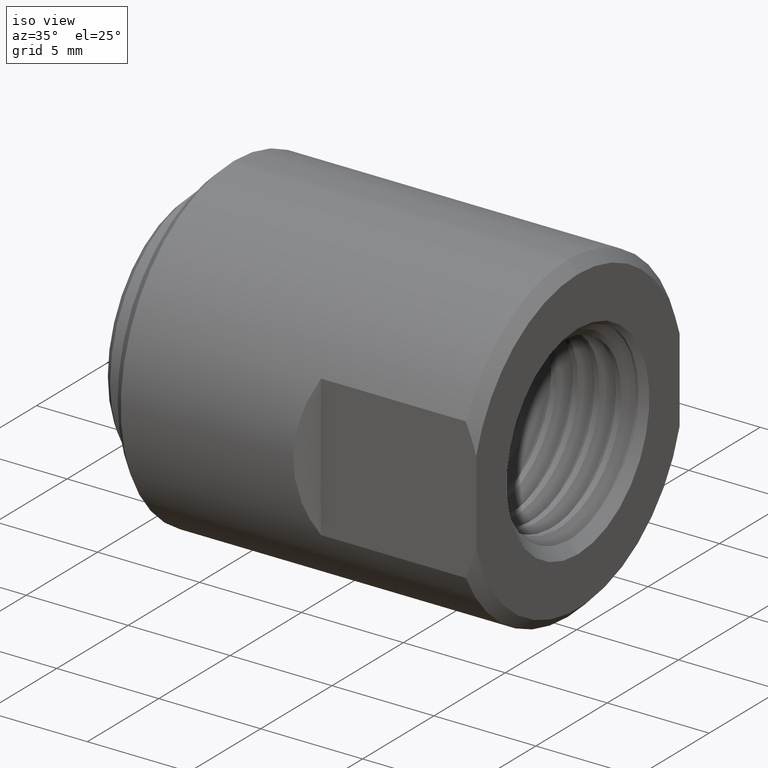
[diagram: clean part render]
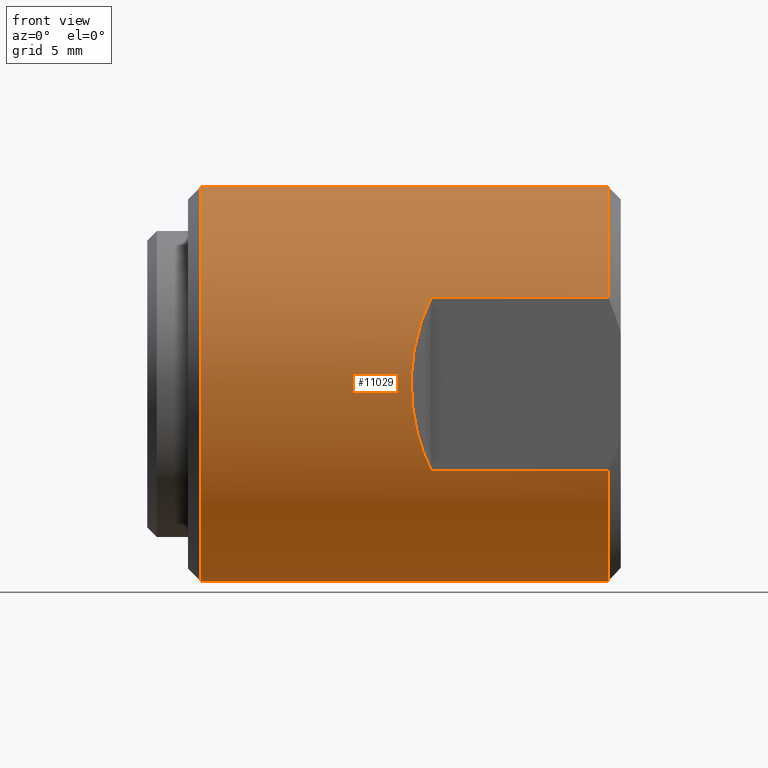
[diagram: tour spotlight — one face highlighted and labeled with its STEP entity id]
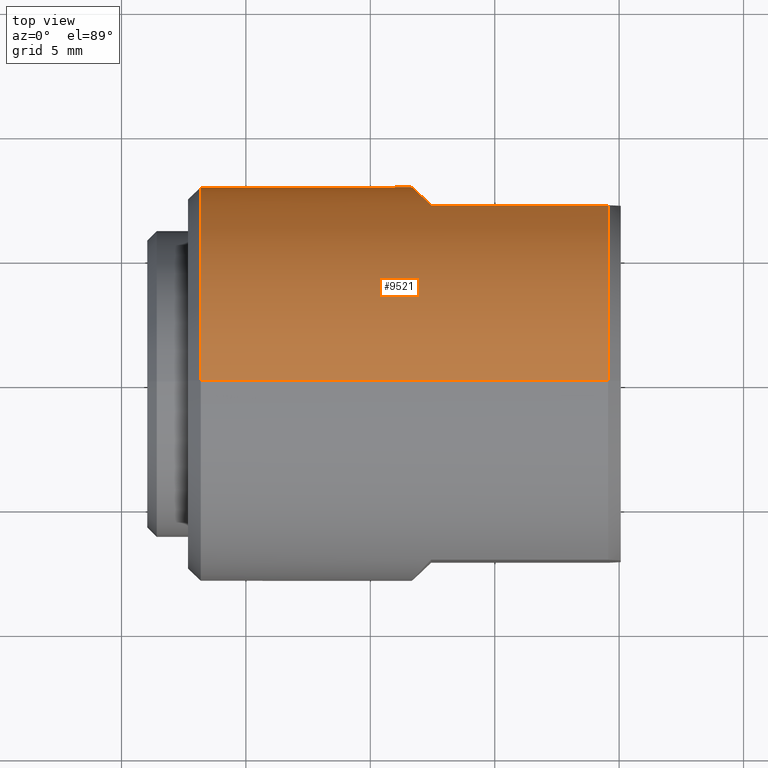
[diagram: tour spotlight — one face highlighted and labeled with its STEP entity id]
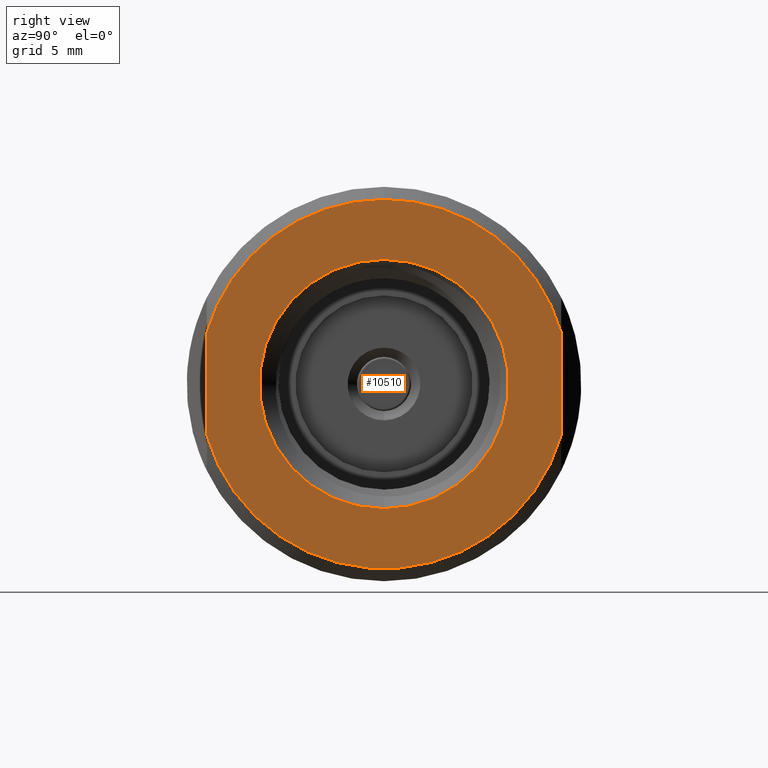
[diagram: tour spotlight — one face highlighted and labeled with its STEP entity id]
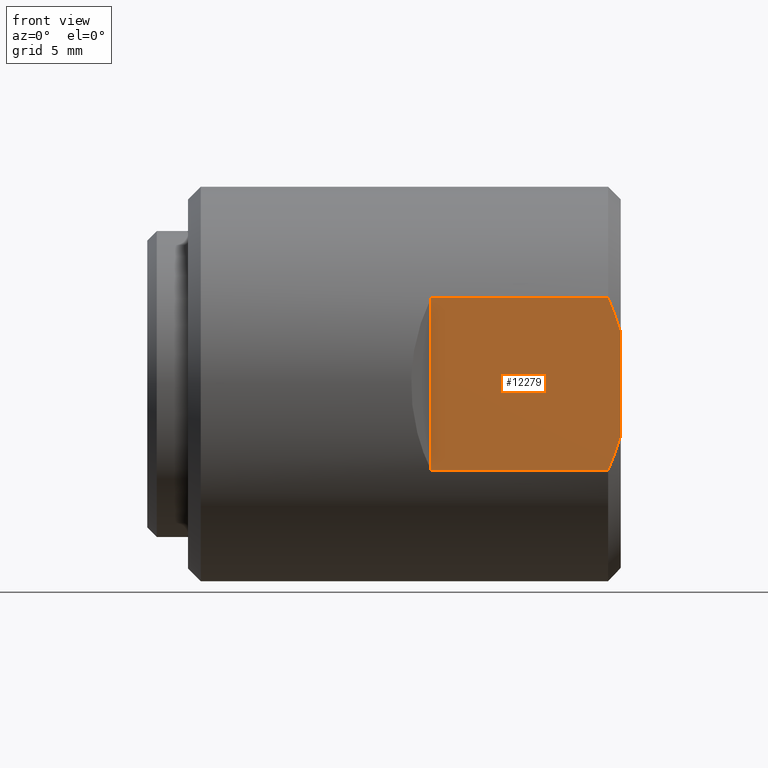
[diagram: tour spotlight — one face highlighted and labeled with its STEP entity id]
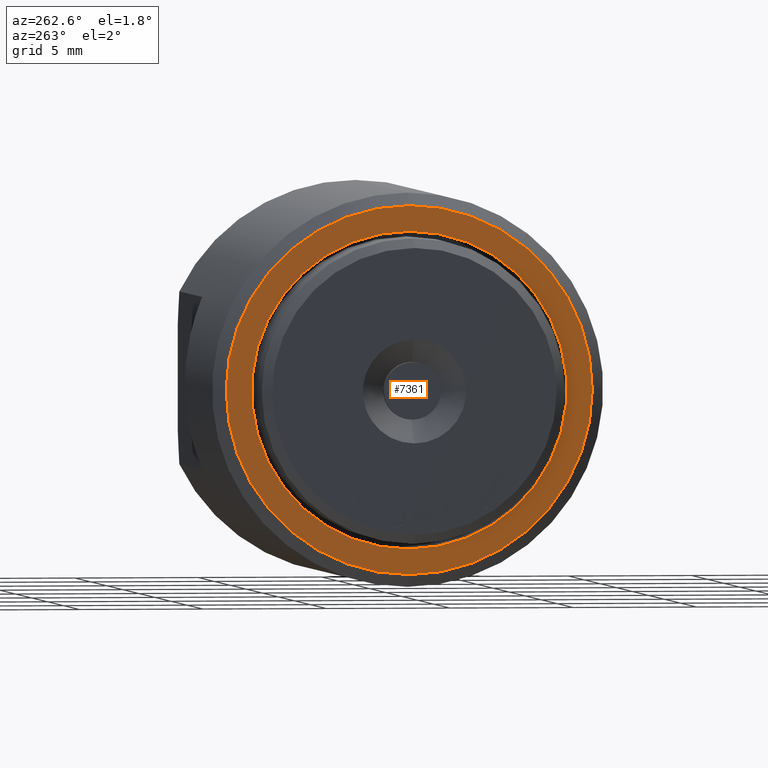
[diagram: tour spotlight — one face highlighted and labeled with its STEP entity id]
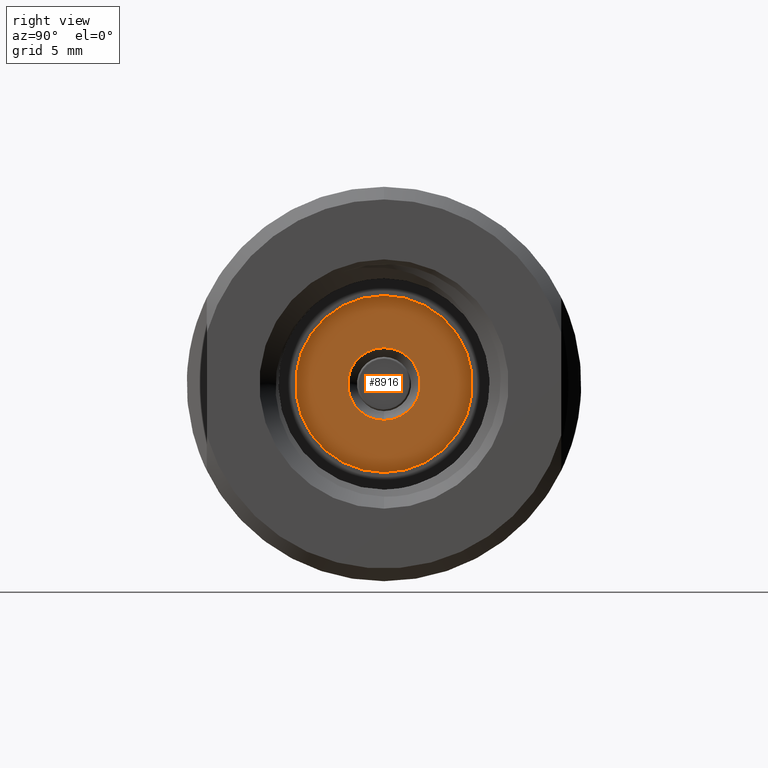
[diagram: tour spotlight — one face highlighted and labeled with its STEP entity id]
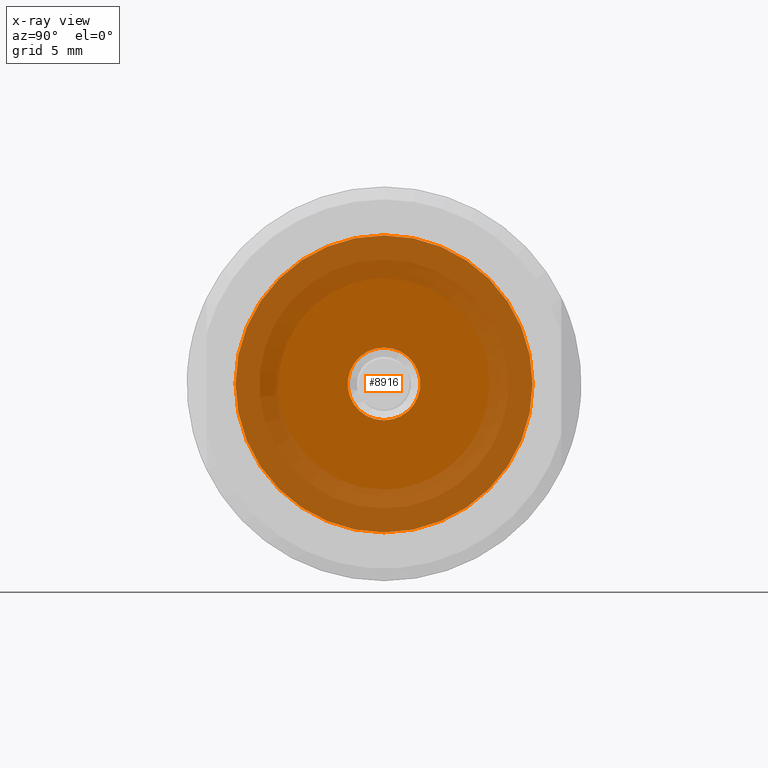
[diagram: x-ray of the same camera — body ghosted, this tour face saturated]
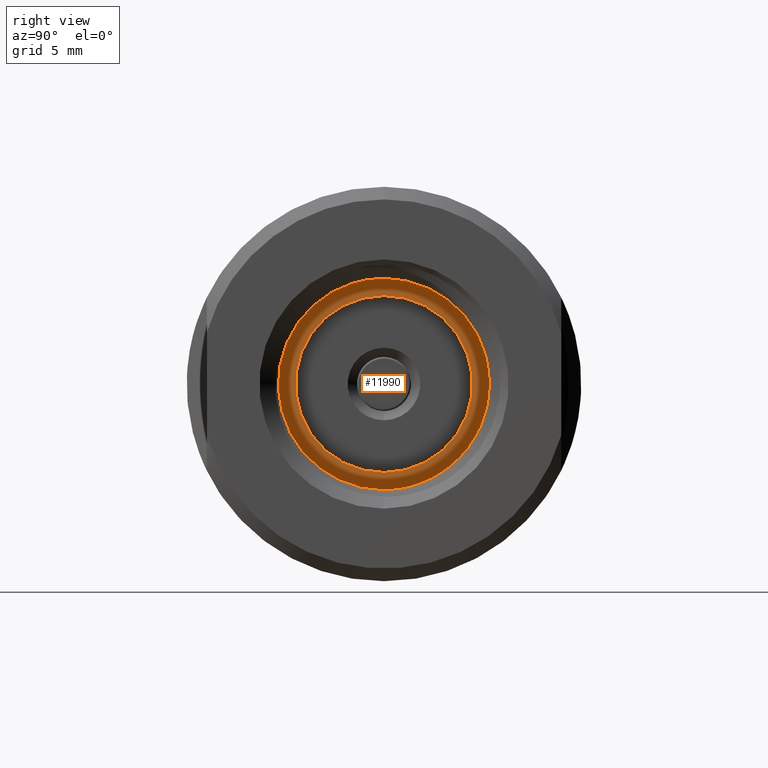
[diagram: tour spotlight — one face highlighted and labeled with its STEP entity id]
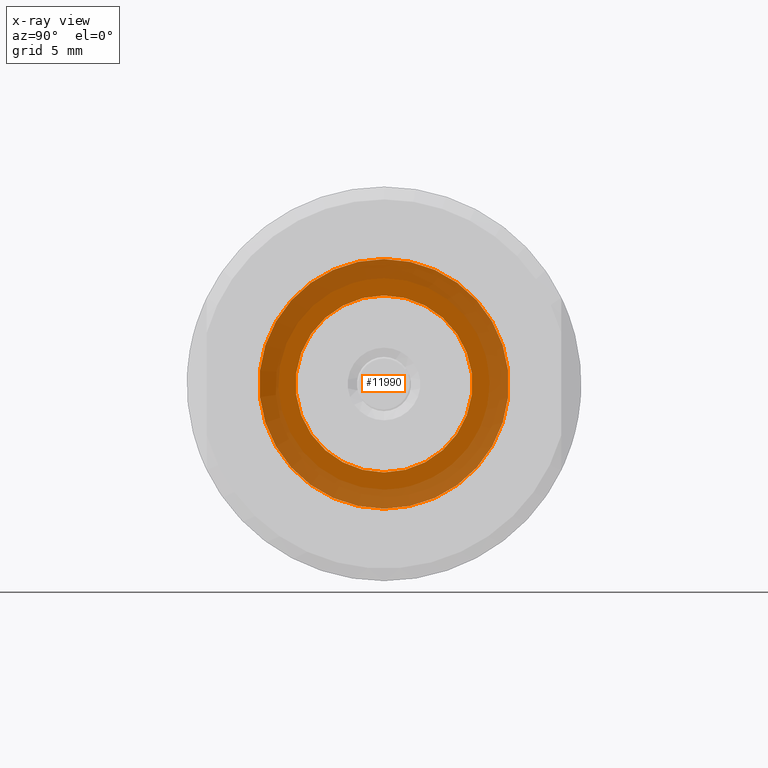
[diagram: x-ray of the same camera — body ghosted, this tour face saturated]
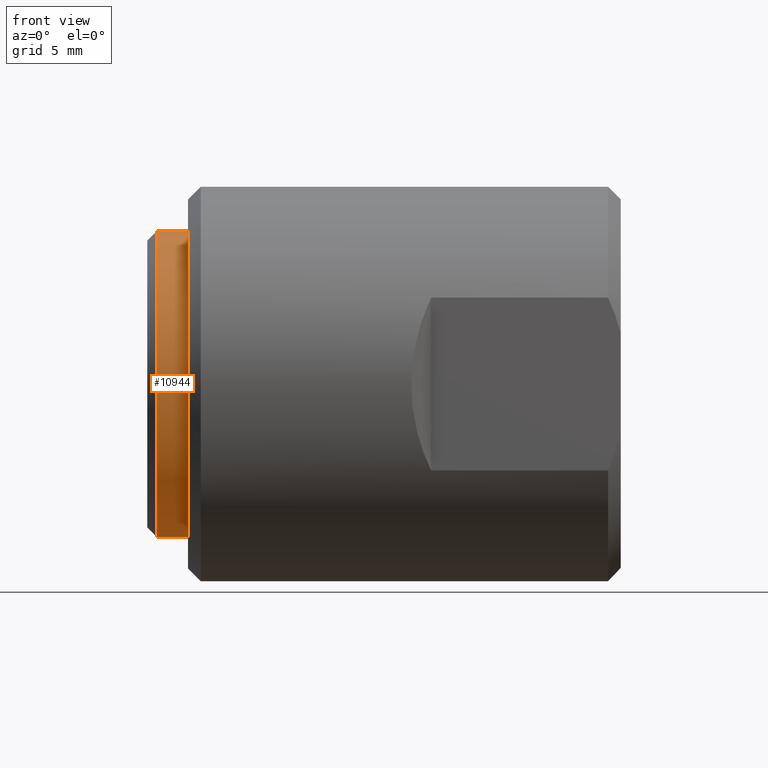
[diagram: tour spotlight — one face highlighted and labeled with its STEP entity id]
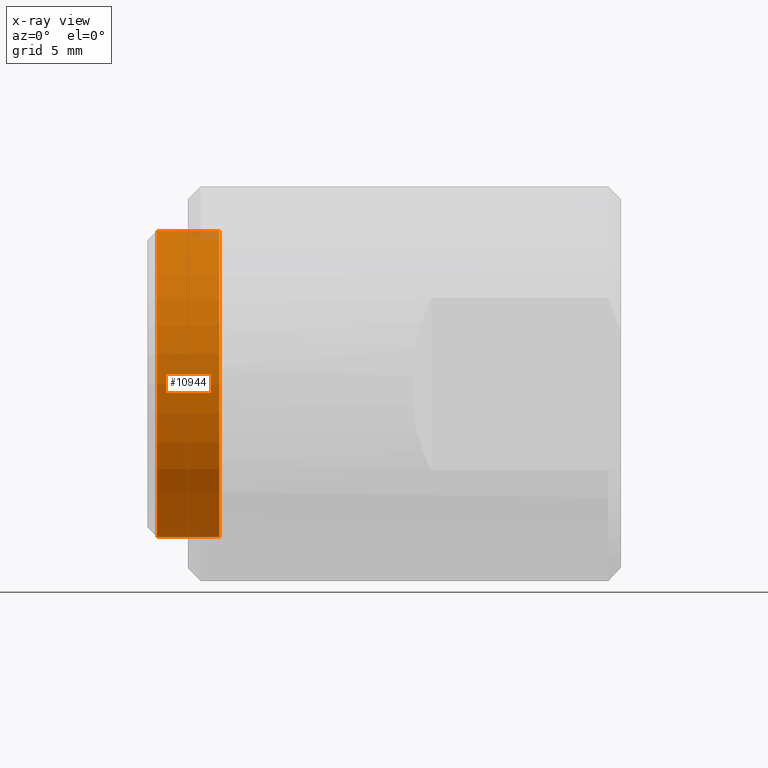
[diagram: x-ray of the same camera — body ghosted, this tour face saturated]
A machine part: a face-by-face anatomy tour. The part has 252 B-rep faces; the first image is the clean iso view, then the 8 largest visible faces are spotlighted one at a time (largest first), each with its STEP entity span.

Face 1 — front view, entity #11029. In plain terms, the highlighted cylindrical surface (partial cylindrical patch) has radius 7.9248 mm, axis along (-1, -0, -0).
Definition (entity closure, byte-faithful):
#109 = ORIENTED_EDGE ( 'NONE', *, *, #2656, .T. ) ;
#242 = LINE ( 'NONE', #10099, #2553 ) ;
#273 = ORIENTED_EDGE ( 'NONE', *, *, #1222, .F. ) ;
#332 = DIRECTION ( 'NONE',  ( -1.000000000000000000, -0.0000000000000000000, -0.0000000000000000000 ) ) ;
#372 = DIRECTION ( 'NONE',  ( -1.000000000000000000, -0.0000000000000000000, -0.0000000000000000000 ) ) ;
#721 = DIRECTION ( 'NONE',  ( 0.0000000000000000000, 0.0000000000000000000, 1.000000000000000000 ) ) ;
#748 = CARTESIAN_POINT ( 'NONE',  ( 0.5729999999999999538, -0.2804999999999999716, -0.1366153358887646496 ) ) ;
#848 = VERTEX_POINT ( 'NONE', #9103 ) ;
#980 = VERTEX_POINT ( 'NONE', #3332 ) ;
#1065 = DIRECTION ( 'NONE',  ( -1.000000000000000000, -0.0000000000000000000, -0.0000000000000000000 ) ) ;
#1222 = EDGE_CURVE ( 'NONE', #3728, #980, #2930, .T. ) ;
#1234 = EDGE_CURVE ( 'NONE', #5708, #2041, #7807, .T. ) ;
#1347 = ORIENTED_EDGE ( 'NONE', *, *, #9077, .F. ) ;
#1404 = DIRECTION ( 'NONE',  ( 0.0000000000000000000, 0.0000000000000000000, 1.000000000000000000 ) ) ;
#1425 = DIRECTION ( 'NONE',  ( -1.000000000000000000, -0.0000000000000000000, -0.0000000000000000000 ) ) ;
#1496 = CARTESIAN_POINT ( 'NONE',  ( 0.2502422680412371703, -0.3232577319587630060, -0.04882472485371666671 ) ) ;
#1670 = AXIS2_PLACEMENT_3D ( 'NONE', #2137, #11679, #9944 ) ;
#1813 = EDGE_CURVE ( 'NONE', #980, #8459, #242, .T. ) ;
#2041 = VERTEX_POINT ( 'NONE', #9620 ) ;
#2134 = AXIS2_PLACEMENT_3D ( 'NONE', #12419, #2694, #721 ) ;
#2137 = CARTESIAN_POINT ( 'NONE',  ( 0.5729999999999999538, 0.0000000000000000000, 0.0000000000000000000 ) ) ;
#2189 = CARTESIAN_POINT ( 'NONE',  ( 0.0000000000000000000, 0.0000000000000000000, 0.0000000000000000000 ) ) ;
#2553 = VECTOR ( 'NONE', #7872, 39.37007874015748143 ) ;
#2574 = CARTESIAN_POINT ( 'NONE',  ( 0.0000000000000000000, 0.0000000000000000000, 0.3119999999999999996 ) ) ;
#2656 = EDGE_CURVE ( 'NONE', #2041, #848, #8284, .T. ) ;
#2694 = DIRECTION ( 'NONE',  ( -1.000000000000000000, -0.0000000000000000000, -0.0000000000000000000 ) ) ;
#2885 = AXIS2_PLACEMENT_3D ( 'NONE', #2189, #1425, #6489 ) ;
#2930 =( BOUNDED_CURVE ( )  B_SPLINE_CURVE ( 3, ( #11089, #11970, #1496, #7005 ),
 .UNSPECIFIED., .F., .F. ) 
 B_SPLINE_CURVE_WITH_KNOTS ( ( 4, 4 ),
 ( 5.829957573947540439, 6.736413040411632025 ),
 .UNSPECIFIED. ) 
 CURVE ( )  GEOMETRIC_REPRESENTATION_ITEM ( )  RATIONAL_B_SPLINE_CURVE ( ( 1.000000000000000000, 0.9326923076923074873, 0.9326923076923074873, 1.000000000000000000 ) ) 
 REPRESENTATION_ITEM ( '' )  );
#3060 = AXIS2_PLACEMENT_3D ( 'NONE', #8000, #372, #1404 ) ;
#3332 = CARTESIAN_POINT ( 'NONE',  ( 0.2929999999999999272, -0.2804999999999999716, -0.1366153358887647884 ) ) ;
#3728 = VERTEX_POINT ( 'NONE', #8533 ) ;
#3862 = EDGE_LOOP ( 'NONE', ( #8322, #7383, #5728, #273, #6234, #9985, #109, #1347 ) ) ;
#3923 = LINE ( 'NONE', #7789, #4790 ) ;
#4269 = FACE_OUTER_BOUND ( 'NONE', #3862, .T. ) ;
#4790 = VECTOR ( 'NONE', #1065, 39.37007874015748143 ) ;
#4821 = CARTESIAN_POINT ( 'NONE',  ( 0.0000000000000000000, 3.820898013339742174E-17, -0.3119999999999999996 ) ) ;
#4968 = EDGE_CURVE ( 'NONE', #5708, #3728, #3923, .T. ) ;
#5708 = VERTEX_POINT ( 'NONE', #8335 ) ;
#5728 = ORIENTED_EDGE ( 'NONE', *, *, #1813, .F. ) ;
#5778 = LINE ( 'NONE', #4821, #9681 ) ;
#6099 = CIRCLE ( 'NONE', #3060, 0.3119999999999999996 ) ;
#6234 = ORIENTED_EDGE ( 'NONE', *, *, #4968, .F. ) ;
#6489 = DIRECTION ( 'NONE',  ( 0.0000000000000000000, 0.0000000000000000000, 1.000000000000000000 ) ) ;
#6670 = EDGE_CURVE ( 'NONE', #10472, #9183, #5778, .T. ) ;
#7005 = CARTESIAN_POINT ( 'NONE',  ( 0.2929999999999999272, -0.2804999999999999716, -0.1366153358887647884 ) ) ;
#7383 = ORIENTED_EDGE ( 'NONE', *, *, #8601, .T. ) ;
#7789 = CARTESIAN_POINT ( 'NONE',  ( -3.192847342595107575E-17, -0.2804999999999999161, 0.1366153358887647884 ) ) ;
#7807 = CIRCLE ( 'NONE', #2134, 0.3119999999999999996 ) ;
#7872 = DIRECTION ( 'NONE',  ( 1.000000000000000000, 0.0000000000000000000, 0.0000000000000000000 ) ) ;
#8000 = CARTESIAN_POINT ( 'NONE',  ( -0.07149999999999999412, 0.0000000000000000000, 0.0000000000000000000 ) ) ;
#8284 = LINE ( 'NONE', #2574, #9651 ) ;
#8322 = ORIENTED_EDGE ( 'NONE', *, *, #6670, .F. ) ;
#8335 = CARTESIAN_POINT ( 'NONE',  ( 0.5729999999999999538, -0.2804999999999999716, 0.1366153358887646496 ) ) ;
#8459 = VERTEX_POINT ( 'NONE', #748 ) ;
#8533 = CARTESIAN_POINT ( 'NONE',  ( 0.2929999999999999272, -0.2804999999999999716, 0.1366153358887647884 ) ) ;
#8601 = EDGE_CURVE ( 'NONE', #10472, #8459, #9361, .T. ) ;
#9077 = EDGE_CURVE ( 'NONE', #9183, #848, #6099, .T. ) ;
#9103 = CARTESIAN_POINT ( 'NONE',  ( -0.07149999999999999412, 0.0000000000000000000, 0.3119999999999999996 ) ) ;
#9183 = VERTEX_POINT ( 'NONE', #9205 ) ;
#9205 = CARTESIAN_POINT ( 'NONE',  ( -0.07149999999999999412, 3.820898013339742174E-17, -0.3119999999999999996 ) ) ;
#9361 = CIRCLE ( 'NONE', #1670, 0.3119999999999999996 ) ;
#9402 = CYLINDRICAL_SURFACE ( 'NONE', #2885, 0.3119999999999999996 ) ;
#9620 = CARTESIAN_POINT ( 'NONE',  ( 0.5729999999999999538, 0.0000000000000000000, 0.3119999999999999996 ) ) ;
#9632 = CARTESIAN_POINT ( 'NONE',  ( 0.5729999999999999538, 3.820898013339742174E-17, -0.3119999999999999996 ) ) ;
#9651 = VECTOR ( 'NONE', #332, 39.37007874015748143 ) ;
#9660 = DIRECTION ( 'NONE',  ( -1.000000000000000000, -0.0000000000000000000, -0.0000000000000000000 ) ) ;
#9681 = VECTOR ( 'NONE', #9660, 39.37007874015748143 ) ;
#9944 = DIRECTION ( 'NONE',  ( 0.0000000000000000000, 0.0000000000000000000, 1.000000000000000000 ) ) ;
#9985 = ORIENTED_EDGE ( 'NONE', *, *, #1234, .T. ) ;
#10099 = CARTESIAN_POINT ( 'NONE',  ( -3.192847342595107575E-17, -0.2804999999999999161, -0.1366153358887647884 ) ) ;
#10472 = VERTEX_POINT ( 'NONE', #9632 ) ;
#11029 = ADVANCED_FACE ( 'NONE', ( #4269 ), #9402, .T. ) ;
#11089 = CARTESIAN_POINT ( 'NONE',  ( 0.2929999999999999272, -0.2804999999999999716, 0.1366153358887647884 ) ) ;
#11679 = DIRECTION ( 'NONE',  ( -1.000000000000000000, -0.0000000000000000000, -0.0000000000000000000 ) ) ;
#11970 = CARTESIAN_POINT ( 'NONE',  ( 0.2502422680412371703, -0.3232577319587630060, 0.04882472485371675691 ) ) ;
#12419 = CARTESIAN_POINT ( 'NONE',  ( 0.5729999999999999538, 0.0000000000000000000, 0.0000000000000000000 ) ) ;

Face 2 — top view, entity #9521. In plain terms, the highlighted cylindrical surface (partial cylindrical patch) has radius 7.9248 mm, axis along (-1, -0, -0).
Definition (entity closure, byte-faithful):
#313 = AXIS2_PLACEMENT_3D ( 'NONE', #10646, #2819, #7580 ) ;
#332 = DIRECTION ( 'NONE',  ( -1.000000000000000000, -0.0000000000000000000, -0.0000000000000000000 ) ) ;
#562 = FACE_OUTER_BOUND ( 'NONE', #11662, .T. ) ;
#848 = VERTEX_POINT ( 'NONE', #9103 ) ;
#1269 = CARTESIAN_POINT ( 'NONE',  ( 0.2929999999999999272, 0.2804999999999999716, -0.1366153358887647884 ) ) ;
#1399 = ORIENTED_EDGE ( 'NONE', *, *, #1800, .F. ) ;
#1800 = EDGE_CURVE ( 'NONE', #9411, #3013, #4565, .T. ) ;
#1818 = CARTESIAN_POINT ( 'NONE',  ( -0.07149999999999999412, 0.0000000000000000000, 0.0000000000000000000 ) ) ;
#1891 = AXIS2_PLACEMENT_3D ( 'NONE', #10988, #12003, #9259 ) ;
#2041 = VERTEX_POINT ( 'NONE', #9620 ) ;
#2286 = ORIENTED_EDGE ( 'NONE', *, *, #2656, .F. ) ;
#2574 = CARTESIAN_POINT ( 'NONE',  ( 0.0000000000000000000, 0.0000000000000000000, 0.3119999999999999996 ) ) ;
#2656 = EDGE_CURVE ( 'NONE', #2041, #848, #8284, .T. ) ;
#2819 = DIRECTION ( 'NONE',  ( -1.000000000000000000, -0.0000000000000000000, -0.0000000000000000000 ) ) ;
#3013 = VERTEX_POINT ( 'NONE', #10797 ) ;
#3477 = CYLINDRICAL_SURFACE ( 'NONE', #3691, 0.3119999999999999996 ) ;
#3574 = ORIENTED_EDGE ( 'NONE', *, *, #10157, .F. ) ;
#3582 = EDGE_CURVE ( 'NONE', #4473, #9411, #7399, .T. ) ;
#3691 = AXIS2_PLACEMENT_3D ( 'NONE', #7358, #6072, #10090 ) ;
#3915 = CIRCLE ( 'NONE', #1891, 0.3119999999999999996 ) ;
#4000 = CARTESIAN_POINT ( 'NONE',  ( 0.2929999999999999272, 0.2804999999999999716, 0.1366153358887647884 ) ) ;
#4323 = ORIENTED_EDGE ( 'NONE', *, *, #3582, .F. ) ;
#4473 = VERTEX_POINT ( 'NONE', #5399 ) ;
#4565 =( BOUNDED_CURVE ( )  B_SPLINE_CURVE ( 3, ( #1269, #6078, #6018, #4000 ),
 .UNSPECIFIED., .F., .F. ) 
 B_SPLINE_CURVE_WITH_KNOTS ( ( 4, 4 ),
 ( 5.829957573947540439, 6.736413040411632025 ),
 .UNSPECIFIED. ) 
 CURVE ( )  GEOMETRIC_REPRESENTATION_ITEM ( )  RATIONAL_B_SPLINE_CURVE ( ( 1.000000000000000000, 0.9326923076923074873, 0.9326923076923074873, 1.000000000000000000 ) ) 
 REPRESENTATION_ITEM ( '' )  );
#4821 = CARTESIAN_POINT ( 'NONE',  ( 0.0000000000000000000, 3.820898013339742174E-17, -0.3119999999999999996 ) ) ;
#5096 = CIRCLE ( 'NONE', #11426, 0.3119999999999999996 ) ;
#5399 = CARTESIAN_POINT ( 'NONE',  ( 0.5729999999999999538, 0.2804999999999999716, -0.1366153358887646496 ) ) ;
#5778 = LINE ( 'NONE', #4821, #9681 ) ;
#6018 = CARTESIAN_POINT ( 'NONE',  ( 0.2502422680412371703, 0.3232577319587630060, 0.04882472485371666671 ) ) ;
#6072 = DIRECTION ( 'NONE',  ( -1.000000000000000000, -0.0000000000000000000, -0.0000000000000000000 ) ) ;
#6078 = CARTESIAN_POINT ( 'NONE',  ( 0.2502422680412371703, 0.3232577319587630060, -0.04882472485371675691 ) ) ;
#6177 = ORIENTED_EDGE ( 'NONE', *, *, #11907, .T. ) ;
#6277 = EDGE_CURVE ( 'NONE', #4473, #10472, #11510, .T. ) ;
#6316 = DIRECTION ( 'NONE',  ( -1.000000000000000000, -0.0000000000000000000, -0.0000000000000000000 ) ) ;
#6335 = ORIENTED_EDGE ( 'NONE', *, *, #6670, .T. ) ;
#6493 = ORIENTED_EDGE ( 'NONE', *, *, #6277, .T. ) ;
#6577 = DIRECTION ( 'NONE',  ( -1.000000000000000000, -0.0000000000000000000, -0.0000000000000000000 ) ) ;
#6670 = EDGE_CURVE ( 'NONE', #10472, #9183, #5778, .T. ) ;
#6730 = LINE ( 'NONE', #10554, #9979 ) ;
#7358 = CARTESIAN_POINT ( 'NONE',  ( 0.0000000000000000000, 0.0000000000000000000, 0.0000000000000000000 ) ) ;
#7399 = LINE ( 'NONE', #11294, #9264 ) ;
#7580 = DIRECTION ( 'NONE',  ( 0.0000000000000000000, 0.0000000000000000000, 1.000000000000000000 ) ) ;
#8284 = LINE ( 'NONE', #2574, #9651 ) ;
#9054 = ORIENTED_EDGE ( 'NONE', *, *, #10755, .F. ) ;
#9103 = CARTESIAN_POINT ( 'NONE',  ( -0.07149999999999999412, 0.0000000000000000000, 0.3119999999999999996 ) ) ;
#9183 = VERTEX_POINT ( 'NONE', #9205 ) ;
#9205 = CARTESIAN_POINT ( 'NONE',  ( -0.07149999999999999412, 3.820898013339742174E-17, -0.3119999999999999996 ) ) ;
#9259 = DIRECTION ( 'NONE',  ( 0.0000000000000000000, 0.0000000000000000000, 1.000000000000000000 ) ) ;
#9264 = VECTOR ( 'NONE', #6316, 39.37007874015748143 ) ;
#9411 = VERTEX_POINT ( 'NONE', #10745 ) ;
#9521 = ADVANCED_FACE ( 'NONE', ( #562 ), #3477, .T. ) ;
#9620 = CARTESIAN_POINT ( 'NONE',  ( 0.5729999999999999538, 0.0000000000000000000, 0.3119999999999999996 ) ) ;
#9632 = CARTESIAN_POINT ( 'NONE',  ( 0.5729999999999999538, 3.820898013339742174E-17, -0.3119999999999999996 ) ) ;
#9651 = VECTOR ( 'NONE', #332, 39.37007874015748143 ) ;
#9660 = DIRECTION ( 'NONE',  ( -1.000000000000000000, -0.0000000000000000000, -0.0000000000000000000 ) ) ;
#9681 = VECTOR ( 'NONE', #9660, 39.37007874015748143 ) ;
#9979 = VECTOR ( 'NONE', #12593, 39.37007874015748143 ) ;
#10090 = DIRECTION ( 'NONE',  ( 0.0000000000000000000, 0.0000000000000000000, 1.000000000000000000 ) ) ;
#10157 = EDGE_CURVE ( 'NONE', #3013, #12411, #6730, .T. ) ;
#10472 = VERTEX_POINT ( 'NONE', #9632 ) ;
#10554 = CARTESIAN_POINT ( 'NONE',  ( -3.192847342595107575E-17, 0.2804999999999999161, 0.1366153358887647884 ) ) ;
#10584 = CARTESIAN_POINT ( 'NONE',  ( 0.5729999999999999538, 0.2804999999999999716, 0.1366153358887646496 ) ) ;
#10646 = CARTESIAN_POINT ( 'NONE',  ( 0.5729999999999999538, 0.0000000000000000000, 0.0000000000000000000 ) ) ;
#10745 = CARTESIAN_POINT ( 'NONE',  ( 0.2929999999999999272, 0.2804999999999999716, -0.1366153358887647884 ) ) ;
#10755 = EDGE_CURVE ( 'NONE', #848, #9183, #5096, .T. ) ;
#10797 = CARTESIAN_POINT ( 'NONE',  ( 0.2929999999999999272, 0.2804999999999999716, 0.1366153358887647884 ) ) ;
#10988 = CARTESIAN_POINT ( 'NONE',  ( 0.5729999999999999538, 0.0000000000000000000, 0.0000000000000000000 ) ) ;
#11294 = CARTESIAN_POINT ( 'NONE',  ( -3.192847342595107575E-17, 0.2804999999999999161, -0.1366153358887647884 ) ) ;
#11426 = AXIS2_PLACEMENT_3D ( 'NONE', #1818, #6577, #12372 ) ;
#11510 = CIRCLE ( 'NONE', #313, 0.3119999999999999996 ) ;
#11662 = EDGE_LOOP ( 'NONE', ( #6493, #6335, #9054, #2286, #6177, #3574, #1399, #4323 ) ) ;
#11907 = EDGE_CURVE ( 'NONE', #2041, #12411, #3915, .T. ) ;
#12003 = DIRECTION ( 'NONE',  ( -1.000000000000000000, -0.0000000000000000000, -0.0000000000000000000 ) ) ;
#12372 = DIRECTION ( 'NONE',  ( 0.0000000000000000000, 0.0000000000000000000, 1.000000000000000000 ) ) ;
#12411 = VERTEX_POINT ( 'NONE', #10584 ) ;
#12593 = DIRECTION ( 'NONE',  ( 1.000000000000000000, 0.0000000000000000000, 0.0000000000000000000 ) ) ;

Face 3 — right view, entity #10510. In plain terms, the highlighted planar face has unit normal (1, 0, 0).
Definition (entity closure, byte-faithful):
#207 = DIRECTION ( 'NONE',  ( 0.0000000000000000000, 0.0000000000000000000, 1.000000000000000000 ) ) ;
#320 = EDGE_LOOP ( 'NONE', ( #7729, #6113 ) ) ;
#517 = ORIENTED_EDGE ( 'NONE', *, *, #8783, .F. ) ;
#643 = CARTESIAN_POINT ( 'NONE',  ( 0.5929999999999999716, -0.2804999999999999716, -0.08114031057372161904 ) ) ;
#735 = AXIS2_PLACEMENT_3D ( 'NONE', #5548, #7699, #12420 ) ;
#1238 = CARTESIAN_POINT ( 'NONE',  ( 0.5929999999999999716, -0.2804999999999999716, 0.08114031057372161904 ) ) ;
#1572 = EDGE_CURVE ( 'NONE', #11044, #6112, #2355, .T. ) ;
#1876 = CARTESIAN_POINT ( 'NONE',  ( 0.5929999999999999716, 0.2804999999999999716, 0.08114031057372160516 ) ) ;
#2071 = LINE ( 'NONE', #7841, #4200 ) ;
#2081 = EDGE_CURVE ( 'NONE', #3695, #12488, #11298, .T. ) ;
#2234 = DIRECTION ( 'NONE',  ( -0.0000000000000000000, -0.0000000000000000000, 1.000000000000000000 ) ) ;
#2355 = LINE ( 'NONE', #10946, #10052 ) ;
#2357 = VERTEX_POINT ( 'NONE', #10143 ) ;
#2753 = EDGE_CURVE ( 'NONE', #2357, #5760, #6623, .T. ) ;
#2997 = CARTESIAN_POINT ( 'NONE',  ( 0.5929999999999999716, 0.0000000000000000000, 0.2919999999999999818 ) ) ;
#3596 = CARTESIAN_POINT ( 'NONE',  ( 0.5929999999999999716, 0.0000000000000000000, 0.0000000000000000000 ) ) ;
#3695 = VERTEX_POINT ( 'NONE', #2997 ) ;
#3710 = DIRECTION ( 'NONE',  ( 0.0000000000000000000, 0.0000000000000000000, 1.000000000000000000 ) ) ;
#3743 = EDGE_CURVE ( 'NONE', #6112, #3695, #3988, .T. ) ;
#3777 = DIRECTION ( 'NONE',  ( -1.000000000000000000, -0.0000000000000000000, -0.0000000000000000000 ) ) ;
#3988 = CIRCLE ( 'NONE', #5182, 0.2919999999999999818 ) ;
#4200 = VECTOR ( 'NONE', #12568, 39.37007874015748143 ) ;
#4581 = CARTESIAN_POINT ( 'NONE',  ( 0.5929999999999999716, 0.0000000000000000000, 0.0000000000000000000 ) ) ;
#4966 = CARTESIAN_POINT ( 'NONE',  ( 0.5929999999999999716, 0.0000000000000000000, 0.0000000000000000000 ) ) ;
#5001 = ORIENTED_EDGE ( 'NONE', *, *, #2081, .F. ) ;
#5182 = AXIS2_PLACEMENT_3D ( 'NONE', #11539, #9801, #3710 ) ;
#5364 = EDGE_CURVE ( 'NONE', #6159, #12488, #2071, .T. ) ;
#5548 = CARTESIAN_POINT ( 'NONE',  ( 0.5929999999999999716, 0.0000000000000000000, 0.0000000000000000000 ) ) ;
#5752 = EDGE_CURVE ( 'NONE', #5760, #2357, #9678, .T. ) ;
#5760 = VERTEX_POINT ( 'NONE', #9658 ) ;
#5873 = FACE_OUTER_BOUND ( 'NONE', #9283, .T. ) ;
#6112 = VERTEX_POINT ( 'NONE', #1238 ) ;
#6113 = ORIENTED_EDGE ( 'NONE', *, *, #2753, .T. ) ;
#6159 = VERTEX_POINT ( 'NONE', #11299 ) ;
#6250 = ORIENTED_EDGE ( 'NONE', *, *, #5364, .T. ) ;
#6339 = AXIS2_PLACEMENT_3D ( 'NONE', #10666, #11622, #11681 ) ;
#6557 = DIRECTION ( 'NONE',  ( 0.0000000000000000000, 0.0000000000000000000, 1.000000000000000000 ) ) ;
#6623 = CIRCLE ( 'NONE', #735, 0.1971875000000000988 ) ;
#6723 = AXIS2_PLACEMENT_3D ( 'NONE', #3596, #3777, #9366 ) ;
#7699 = DIRECTION ( 'NONE',  ( -1.000000000000000000, -0.0000000000000000000, -0.0000000000000000000 ) ) ;
#7729 = ORIENTED_EDGE ( 'NONE', *, *, #5752, .T. ) ;
#7785 = FACE_BOUND ( 'NONE', #320, .T. ) ;
#7841 = CARTESIAN_POINT ( 'NONE',  ( 0.5929999999999999716, 0.2804999999999999716, -0.3119999999999999996 ) ) ;
#8749 = CIRCLE ( 'NONE', #6723, 0.2919999999999999818 ) ;
#8783 = EDGE_CURVE ( 'NONE', #6159, #11044, #8749, .T. ) ;
#8871 = ORIENTED_EDGE ( 'NONE', *, *, #1572, .F. ) ;
#8908 = DIRECTION ( 'NONE',  ( -1.000000000000000000, -0.0000000000000000000, -0.0000000000000000000 ) ) ;
#9283 = EDGE_LOOP ( 'NONE', ( #6250, #5001, #11340, #8871, #517 ) ) ;
#9366 = DIRECTION ( 'NONE',  ( 0.0000000000000000000, 0.0000000000000000000, 1.000000000000000000 ) ) ;
#9658 = CARTESIAN_POINT ( 'NONE',  ( 0.5929999999999999716, 0.0000000000000000000, -0.1971875000000000988 ) ) ;
#9678 = CIRCLE ( 'NONE', #11728, 0.1971875000000000988 ) ;
#9801 = DIRECTION ( 'NONE',  ( -1.000000000000000000, -0.0000000000000000000, -0.0000000000000000000 ) ) ;
#10052 = VECTOR ( 'NONE', #2234, 39.37007874015748143 ) ;
#10143 = CARTESIAN_POINT ( 'NONE',  ( 0.5929999999999999716, 2.414850407068688460E-17, 0.1971875000000000988 ) ) ;
#10271 = AXIS2_PLACEMENT_3D ( 'NONE', #4966, #8908, #207 ) ;
#10510 = ADVANCED_FACE ( 'NONE', ( #5873, #7785 ), #10731, .T. ) ;
#10627 = DIRECTION ( 'NONE',  ( -1.000000000000000000, -0.0000000000000000000, -0.0000000000000000000 ) ) ;
#10666 = CARTESIAN_POINT ( 'NONE',  ( 0.5929999999999999716, 0.0000000000000000000, 0.0000000000000000000 ) ) ;
#10731 = PLANE ( 'NONE',  #6339 ) ;
#10946 = CARTESIAN_POINT ( 'NONE',  ( 0.5929999999999999716, -0.2804999999999999716, -0.3119999999999999996 ) ) ;
#11044 = VERTEX_POINT ( 'NONE', #643 ) ;
#11298 = CIRCLE ( 'NONE', #10271, 0.2919999999999999818 ) ;
#11299 = CARTESIAN_POINT ( 'NONE',  ( 0.5929999999999999716, 0.2804999999999999716, -0.08114031057372161904 ) ) ;
#11340 = ORIENTED_EDGE ( 'NONE', *, *, #3743, .F. ) ;
#11539 = CARTESIAN_POINT ( 'NONE',  ( 0.5929999999999999716, 0.0000000000000000000, 0.0000000000000000000 ) ) ;
#11622 = DIRECTION ( 'NONE',  ( 1.000000000000000000, 0.0000000000000000000, 0.0000000000000000000 ) ) ;
#11681 = DIRECTION ( 'NONE',  ( 0.0000000000000000000, 0.0000000000000000000, -1.000000000000000000 ) ) ;
#11728 = AXIS2_PLACEMENT_3D ( 'NONE', #4581, #10627, #6557 ) ;
#12420 = DIRECTION ( 'NONE',  ( 0.0000000000000000000, 0.0000000000000000000, 1.000000000000000000 ) ) ;
#12488 = VERTEX_POINT ( 'NONE', #1876 ) ;
#12568 = DIRECTION ( 'NONE',  ( -0.0000000000000000000, -0.0000000000000000000, 1.000000000000000000 ) ) ;

Face 4 — front view, entity #12279. In plain terms, the highlighted planar face has unit normal (0, 1, 0).
Definition (entity closure, byte-faithful):
#50 = ORIENTED_EDGE ( 'NONE', *, *, #4209, .T. ) ;
#242 = LINE ( 'NONE', #10099, #2553 ) ;
#405 = DIRECTION ( 'NONE',  ( -1.000000000000000000, 1.138269997360109921E-16, 0.0000000000000000000 ) ) ;
#643 = CARTESIAN_POINT ( 'NONE',  ( 0.5929999999999999716, -0.2804999999999999716, -0.08114031057372161904 ) ) ;
#748 = CARTESIAN_POINT ( 'NONE',  ( 0.5729999999999999538, -0.2804999999999999716, -0.1366153358887646496 ) ) ;
#980 = VERTEX_POINT ( 'NONE', #3332 ) ;
#993 = ORIENTED_EDGE ( 'NONE', *, *, #1572, .T. ) ;
#1065 = DIRECTION ( 'NONE',  ( -1.000000000000000000, -0.0000000000000000000, -0.0000000000000000000 ) ) ;
#1238 = CARTESIAN_POINT ( 'NONE',  ( 0.5929999999999999716, -0.2804999999999999716, 0.08114031057372161904 ) ) ;
#1572 = EDGE_CURVE ( 'NONE', #11044, #6112, #2355, .T. ) ;
#1616 = CARTESIAN_POINT ( 'NONE',  ( 0.5729999999999999538, -0.2804999999999999716, 0.1366153358887646496 ) ) ;
#1813 = EDGE_CURVE ( 'NONE', #980, #8459, #242, .T. ) ;
#2234 = DIRECTION ( 'NONE',  ( -0.0000000000000000000, -0.0000000000000000000, 1.000000000000000000 ) ) ;
#2355 = LINE ( 'NONE', #10946, #10052 ) ;
#2553 = VECTOR ( 'NONE', #7872, 39.37007874015748143 ) ;
#3332 = CARTESIAN_POINT ( 'NONE',  ( 0.2929999999999999272, -0.2804999999999999716, -0.1366153358887647884 ) ) ;
#3634 = CARTESIAN_POINT ( 'NONE',  ( 0.5929999999999999716, -0.2804999999999999716, 0.08114031057372161904 ) ) ;
#3728 = VERTEX_POINT ( 'NONE', #8533 ) ;
#3914 = EDGE_CURVE ( 'NONE', #6112, #5708, #5504, .T. ) ;
#3923 = LINE ( 'NONE', #7789, #4790 ) ;
#4209 = EDGE_CURVE ( 'NONE', #8459, #11044, #6722, .T. ) ;
#4316 = AXIS2_PLACEMENT_3D ( 'NONE', #5097, #8226, #405 ) ;
#4472 = ORIENTED_EDGE ( 'NONE', *, *, #10349, .F. ) ;
#4790 = VECTOR ( 'NONE', #1065, 39.37007874015748143 ) ;
#4939 = CARTESIAN_POINT ( 'NONE',  ( 0.5929999999999999716, -0.2804999999999999716, -0.08114031057372161904 ) ) ;
#4968 = EDGE_CURVE ( 'NONE', #5708, #3728, #3923, .T. ) ;
#4971 = ORIENTED_EDGE ( 'NONE', *, *, #1813, .T. ) ;
#5097 = CARTESIAN_POINT ( 'NONE',  ( 0.5929999999999999716, -0.2804999999999999716, -0.3119999999999999996 ) ) ;
#5504 = B_SPLINE_CURVE_WITH_KNOTS ( 'NONE', 3,
 ( #3634, #7504, #10319, #1616 ),
 .UNSPECIFIED., .F., .F.,
 ( 4, 4 ),
 ( 0.02139957257847289324, 0.02289542820996243178 ),
 .UNSPECIFIED. ) ;
#5708 = VERTEX_POINT ( 'NONE', #8335 ) ;
#5751 = CARTESIAN_POINT ( 'NONE',  ( 0.2929999999999999272, -0.2804999999999999716, -0.3119999999999999996 ) ) ;
#6108 = VECTOR ( 'NONE', #11320, 39.37007874015748143 ) ;
#6112 = VERTEX_POINT ( 'NONE', #1238 ) ;
#6722 = B_SPLINE_CURVE_WITH_KNOTS ( 'NONE', 3,
 ( #7287, #9185, #11180, #4939 ),
 .UNSPECIFIED., .F., .F.,
 ( 4, 4 ),
 ( 0.01572552264565490673, 0.01722347751484201023 ),
 .UNSPECIFIED. ) ;
#7287 = CARTESIAN_POINT ( 'NONE',  ( 0.5729999999999999538, -0.2804999999999999716, -0.1366153358887646496 ) ) ;
#7504 = CARTESIAN_POINT ( 'NONE',  ( 0.5877539723696620921, -0.2804999999999999716, 0.1000192137628690553 ) ) ;
#7789 = CARTESIAN_POINT ( 'NONE',  ( -3.192847342595107575E-17, -0.2804999999999999161, 0.1366153358887647884 ) ) ;
#7872 = DIRECTION ( 'NONE',  ( 1.000000000000000000, 0.0000000000000000000, 0.0000000000000000000 ) ) ;
#8226 = DIRECTION ( 'NONE',  ( 1.138269997360109921E-16, 1.000000000000000000, 0.0000000000000000000 ) ) ;
#8335 = CARTESIAN_POINT ( 'NONE',  ( 0.5729999999999999538, -0.2804999999999999716, 0.1366153358887646496 ) ) ;
#8459 = VERTEX_POINT ( 'NONE', #748 ) ;
#8533 = CARTESIAN_POINT ( 'NONE',  ( 0.2929999999999999272, -0.2804999999999999716, 0.1366153358887647884 ) ) ;
#8620 = LINE ( 'NONE', #5751, #6108 ) ;
#9185 = CARTESIAN_POINT ( 'NONE',  ( 0.5808694484196408325, -0.2804999999999999716, -0.1186432107905465855 ) ) ;
#9579 = ORIENTED_EDGE ( 'NONE', *, *, #3914, .T. ) ;
#9705 = EDGE_LOOP ( 'NONE', ( #4971, #50, #993, #9579, #11837, #4472 ) ) ;
#10052 = VECTOR ( 'NONE', #2234, 39.37007874015748143 ) ;
#10069 = PLANE ( 'NONE',  #4316 ) ;
#10099 = CARTESIAN_POINT ( 'NONE',  ( -3.192847342595107575E-17, -0.2804999999999999161, -0.1366153358887647884 ) ) ;
#10139 = FACE_OUTER_BOUND ( 'NONE', #9705, .T. ) ;
#10319 = CARTESIAN_POINT ( 'NONE',  ( 0.5808675210167417724, -0.2804999999999999716, 0.1186476125636022477 ) ) ;
#10349 = EDGE_CURVE ( 'NONE', #980, #3728, #8620, .T. ) ;
#10946 = CARTESIAN_POINT ( 'NONE',  ( 0.5929999999999999716, -0.2804999999999999716, -0.3119999999999999996 ) ) ;
#11044 = VERTEX_POINT ( 'NONE', #643 ) ;
#11180 = CARTESIAN_POINT ( 'NONE',  ( 0.5876977962549014833, -0.2804999999999999716, -0.1002213749993014630 ) ) ;
#11320 = DIRECTION ( 'NONE',  ( -0.0000000000000000000, -0.0000000000000000000, 1.000000000000000000 ) ) ;
#11837 = ORIENTED_EDGE ( 'NONE', *, *, #4968, .T. ) ;
#12279 = ADVANCED_FACE ( 'NONE', ( #10139 ), #10069, .F. ) ;

Face 5 — auxiliary view, entity #7361. In plain terms, the highlighted planar face has unit normal (-1, 0, -0).
Definition (entity closure, byte-faithful):
#262 = CARTESIAN_POINT ( 'NONE',  ( -0.09149999999999999800, 0.0000000000000000000, 0.0000000000000000000 ) ) ;
#534 = EDGE_CURVE ( 'NONE', #11341, #3880, #6602, .T. ) ;
#789 = EDGE_CURVE ( 'NONE', #1346, #1236, #4567, .T. ) ;
#1159 = DIRECTION ( 'NONE',  ( -1.000000000000000000, -0.0000000000000000000, -0.0000000000000000000 ) ) ;
#1236 = VERTEX_POINT ( 'NONE', #3706 ) ;
#1332 = AXIS2_PLACEMENT_3D ( 'NONE', #7111, #1159, #9921 ) ;
#1338 = DIRECTION ( 'NONE',  ( -1.000000000000000000, -0.0000000000000000000, -0.0000000000000000000 ) ) ;
#1346 = VERTEX_POINT ( 'NONE', #4949 ) ;
#1393 = CARTESIAN_POINT ( 'NONE',  ( -0.09149999999999999800, 0.0000000000000000000, -0.2919999999999999818 ) ) ;
#1400 = EDGE_CURVE ( 'NONE', #3880, #11341, #11882, .T. ) ;
#1677 = CARTESIAN_POINT ( 'NONE',  ( -0.09149999999999999800, 3.698433333425005892E-17, 0.2919999999999999818 ) ) ;
#1865 = AXIS2_PLACEMENT_3D ( 'NONE', #262, #10896, #4332 ) ;
#1970 = DIRECTION ( 'NONE',  ( -1.000000000000000000, -0.0000000000000000000, -0.0000000000000000000 ) ) ;
#2171 = DIRECTION ( 'NONE',  ( 0.0000000000000000000, 0.0000000000000000000, 1.000000000000000000 ) ) ;
#3661 = ORIENTED_EDGE ( 'NONE', *, *, #1400, .T. ) ;
#3706 = CARTESIAN_POINT ( 'NONE',  ( -0.09149999999999999800, 0.0000000000000000000, 0.2514999999999999458 ) ) ;
#3880 = VERTEX_POINT ( 'NONE', #1677 ) ;
#4096 = CIRCLE ( 'NONE', #5302, 0.2514999999999999458 ) ;
#4332 = DIRECTION ( 'NONE',  ( -0.0000000000000000000, 0.0000000000000000000, 1.000000000000000000 ) ) ;
#4564 = EDGE_LOOP ( 'NONE', ( #7012, #9378 ) ) ;
#4567 = CIRCLE ( 'NONE', #7202, 0.2514999999999999458 ) ;
#4949 = CARTESIAN_POINT ( 'NONE',  ( -0.09149999999999999800, 3.079986699855593275E-17, -0.2514999999999999458 ) ) ;
#5302 = AXIS2_PLACEMENT_3D ( 'NONE', #8063, #1338, #2171 ) ;
#6040 = FACE_BOUND ( 'NONE', #4564, .T. ) ;
#6055 = DIRECTION ( 'NONE',  ( 0.0000000000000000000, 0.0000000000000000000, 1.000000000000000000 ) ) ;
#6602 = CIRCLE ( 'NONE', #7412, 0.2919999999999999818 ) ;
#7012 = ORIENTED_EDGE ( 'NONE', *, *, #7635, .F. ) ;
#7111 = CARTESIAN_POINT ( 'NONE',  ( -0.09149999999999999800, 0.0000000000000000000, 0.0000000000000000000 ) ) ;
#7202 = AXIS2_PLACEMENT_3D ( 'NONE', #9884, #10848, #6055 ) ;
#7361 = ADVANCED_FACE ( 'NONE', ( #10954, #6040 ), #12101, .T. ) ;
#7412 = AXIS2_PLACEMENT_3D ( 'NONE', #7921, #1970, #8811 ) ;
#7635 = EDGE_CURVE ( 'NONE', #1236, #1346, #4096, .T. ) ;
#7921 = CARTESIAN_POINT ( 'NONE',  ( -0.09149999999999999800, 0.0000000000000000000, 0.0000000000000000000 ) ) ;
#8063 = CARTESIAN_POINT ( 'NONE',  ( -0.09149999999999999800, 0.0000000000000000000, 0.0000000000000000000 ) ) ;
#8401 = EDGE_LOOP ( 'NONE', ( #12225, #3661 ) ) ;
#8811 = DIRECTION ( 'NONE',  ( 0.0000000000000000000, 0.0000000000000000000, 1.000000000000000000 ) ) ;
#9378 = ORIENTED_EDGE ( 'NONE', *, *, #789, .F. ) ;
#9884 = CARTESIAN_POINT ( 'NONE',  ( -0.09149999999999999800, 0.0000000000000000000, 0.0000000000000000000 ) ) ;
#9921 = DIRECTION ( 'NONE',  ( 0.0000000000000000000, 0.0000000000000000000, 1.000000000000000000 ) ) ;
#10848 = DIRECTION ( 'NONE',  ( -1.000000000000000000, -0.0000000000000000000, -0.0000000000000000000 ) ) ;
#10896 = DIRECTION ( 'NONE',  ( -1.000000000000000000, 0.0000000000000000000, -0.0000000000000000000 ) ) ;
#10954 = FACE_OUTER_BOUND ( 'NONE', #8401, .T. ) ;
#11341 = VERTEX_POINT ( 'NONE', #1393 ) ;
#11882 = CIRCLE ( 'NONE', #1332, 0.2919999999999999818 ) ;
#12101 = PLANE ( 'NONE',  #1865 ) ;
#12225 = ORIENTED_EDGE ( 'NONE', *, *, #534, .T. ) ;

Face 6 — right view, entity #8916. An x-ray twin of the same camera follows (body ghosted, this face saturated) — the face is partly hidden behind the body. In plain terms, the highlighted planar face has unit normal (-1, 0, -0).
Definition (entity closure, byte-faithful):
#231 = AXIS2_PLACEMENT_3D ( 'NONE', #10242, #5463, #440 ) ;
#256 = ORIENTED_EDGE ( 'NONE', *, *, #7199, .T. ) ;
#399 = VERTEX_POINT ( 'NONE', #4686 ) ;
#440 = DIRECTION ( 'NONE',  ( 0.0000000000000000000, 0.0000000000000000000, 1.000000000000000000 ) ) ;
#865 = EDGE_LOOP ( 'NONE', ( #8675, #4874 ) ) ;
#900 = CARTESIAN_POINT ( 'NONE',  ( 0.1559999999999999998, 0.0000000000000000000, -0.05750000000000000250 ) ) ;
#1249 = AXIS2_PLACEMENT_3D ( 'NONE', #10710, #4896, #5794 ) ;
#1299 = VERTEX_POINT ( 'NONE', #7396 ) ;
#1340 = AXIS2_PLACEMENT_3D ( 'NONE', #9688, #10660, #1948 ) ;
#1948 = DIRECTION ( 'NONE',  ( 0.0000000000000000000, 0.0000000000000000000, 1.000000000000000000 ) ) ;
#3002 = EDGE_CURVE ( 'NONE', #7351, #1299, #8241, .T. ) ;
#3244 = EDGE_CURVE ( 'NONE', #1299, #7351, #10280, .T. ) ;
#3637 = DIRECTION ( 'NONE',  ( -1.000000000000000000, 0.0000000000000000000, -0.0000000000000000000 ) ) ;
#4046 = DIRECTION ( 'NONE',  ( 0.0000000000000000000, 0.0000000000000000000, 1.000000000000000000 ) ) ;
#4109 = VERTEX_POINT ( 'NONE', #900 ) ;
#4310 = ORIENTED_EDGE ( 'NONE', *, *, #10011, .T. ) ;
#4644 = CARTESIAN_POINT ( 'NONE',  ( 0.1559999999999999998, 0.2349999999999999867, 0.0000000000000000000 ) ) ;
#4686 = CARTESIAN_POINT ( 'NONE',  ( 0.1559999999999999998, 7.041719095097280756E-18, 0.05750000000000000250 ) ) ;
#4859 = DIRECTION ( 'NONE',  ( -1.000000000000000000, -0.0000000000000000000, -0.0000000000000000000 ) ) ;
#4874 = ORIENTED_EDGE ( 'NONE', *, *, #3002, .F. ) ;
#4896 = DIRECTION ( 'NONE',  ( -1.000000000000000000, -0.0000000000000000000, -0.0000000000000000000 ) ) ;
#5463 = DIRECTION ( 'NONE',  ( -1.000000000000000000, -0.0000000000000000000, -0.0000000000000000000 ) ) ;
#5794 = DIRECTION ( 'NONE',  ( 0.0000000000000000000, 0.0000000000000000000, 1.000000000000000000 ) ) ;
#7199 = EDGE_CURVE ( 'NONE', #4109, #399, #10181, .T. ) ;
#7351 = VERTEX_POINT ( 'NONE', #8963 ) ;
#7396 = CARTESIAN_POINT ( 'NONE',  ( 0.1559999999999999998, 0.0000000000000000000, 0.2349999999999999867 ) ) ;
#8241 = CIRCLE ( 'NONE', #11508, 0.2349999999999999867 ) ;
#8524 = DIRECTION ( 'NONE',  ( -0.0000000000000000000, 0.0000000000000000000, 1.000000000000000000 ) ) ;
#8675 = ORIENTED_EDGE ( 'NONE', *, *, #3244, .F. ) ;
#8758 = CIRCLE ( 'NONE', #231, 0.05750000000000000250 ) ;
#8916 = ADVANCED_FACE ( 'NONE', ( #11405, #9412 ), #12478, .F. ) ;
#8963 = CARTESIAN_POINT ( 'NONE',  ( 0.1559999999999999998, 2.969768487932331731E-17, -0.2349999999999999867 ) ) ;
#9412 = FACE_BOUND ( 'NONE', #9511, .T. ) ;
#9511 = EDGE_LOOP ( 'NONE', ( #256, #4310 ) ) ;
#9688 = CARTESIAN_POINT ( 'NONE',  ( 0.1559999999999999998, 0.0000000000000000000, 0.0000000000000000000 ) ) ;
#9829 = CARTESIAN_POINT ( 'NONE',  ( 0.1559999999999999998, 0.0000000000000000000, 0.0000000000000000000 ) ) ;
#10011 = EDGE_CURVE ( 'NONE', #399, #4109, #8758, .T. ) ;
#10181 = CIRCLE ( 'NONE', #1249, 0.05750000000000000250 ) ;
#10242 = CARTESIAN_POINT ( 'NONE',  ( 0.1559999999999999998, 0.0000000000000000000, 0.0000000000000000000 ) ) ;
#10280 = CIRCLE ( 'NONE', #1340, 0.2349999999999999867 ) ;
#10660 = DIRECTION ( 'NONE',  ( -1.000000000000000000, -0.0000000000000000000, -0.0000000000000000000 ) ) ;
#10710 = CARTESIAN_POINT ( 'NONE',  ( 0.1559999999999999998, 0.0000000000000000000, 0.0000000000000000000 ) ) ;
#10790 = AXIS2_PLACEMENT_3D ( 'NONE', #4644, #3637, #8524 ) ;
#11405 = FACE_OUTER_BOUND ( 'NONE', #865, .T. ) ;
#11508 = AXIS2_PLACEMENT_3D ( 'NONE', #9829, #4859, #4046 ) ;
#12478 = PLANE ( 'NONE',  #10790 ) ;

Face 7 — right view, entity #11990. An x-ray twin of the same camera follows (body ghosted, this face saturated) — the face is partly hidden behind the body. In plain terms, the highlighted planar face has unit normal (1, 0, 0).
Definition (entity closure, byte-faithful):
#171 = VERTEX_POINT ( 'NONE', #7553 ) ;
#553 = ORIENTED_EDGE ( 'NONE', *, *, #11945, .F. ) ;
#667 = VERTEX_POINT ( 'NONE', #11184 ) ;
#874 = FACE_OUTER_BOUND ( 'NONE', #10317, .T. ) ;
#1323 = DIRECTION ( 'NONE',  ( 0.0000000000000000000, 0.0000000000000000000, 1.000000000000000000 ) ) ;
#2662 = CIRCLE ( 'NONE', #3246, 0.1400000000000000688 ) ;
#3246 = AXIS2_PLACEMENT_3D ( 'NONE', #8554, #7540, #8678 ) ;
#3282 = DIRECTION ( 'NONE',  ( -1.000000000000000000, -0.0000000000000000000, -0.0000000000000000000 ) ) ;
#3511 = CIRCLE ( 'NONE', #11024, 0.1975000000000000921 ) ;
#3546 = PLANE ( 'NONE',  #5107 ) ;
#3669 = CARTESIAN_POINT ( 'NONE',  ( 0.2179999999999999716, 0.0000000000000000000, 0.0000000000000000000 ) ) ;
#4672 = DIRECTION ( 'NONE',  ( -1.000000000000000000, -0.0000000000000000000, -0.0000000000000000000 ) ) ;
#5098 = DIRECTION ( 'NONE',  ( 0.0000000000000000000, 0.0000000000000000000, 1.000000000000000000 ) ) ;
#5107 = AXIS2_PLACEMENT_3D ( 'NONE', #5686, #5448, #5570 ) ;
#5204 = VERTEX_POINT ( 'NONE', #10468 ) ;
#5448 = DIRECTION ( 'NONE',  ( 1.000000000000000000, 0.0000000000000000000, 0.0000000000000000000 ) ) ;
#5570 = DIRECTION ( 'NONE',  ( 0.0000000000000000000, 0.0000000000000000000, -1.000000000000000000 ) ) ;
#5686 = CARTESIAN_POINT ( 'NONE',  ( 0.2179999999999999716, 0.0000000000000000000, 0.0000000000000000000 ) ) ;
#5779 = ORIENTED_EDGE ( 'NONE', *, *, #8290, .T. ) ;
#6392 = CARTESIAN_POINT ( 'NONE',  ( 0.2179999999999999716, 0.0000000000000000000, 0.0000000000000000000 ) ) ;
#6937 = CIRCLE ( 'NONE', #8566, 0.1975000000000000921 ) ;
#7540 = DIRECTION ( 'NONE',  ( -1.000000000000000000, -0.0000000000000000000, -0.0000000000000000000 ) ) ;
#7553 = CARTESIAN_POINT ( 'NONE',  ( 0.2179999999999999716, 1.714505518806295624E-17, -0.1400000000000000688 ) ) ;
#7590 = ORIENTED_EDGE ( 'NONE', *, *, #10718, .F. ) ;
#8093 = DIRECTION ( 'NONE',  ( -1.000000000000000000, -0.0000000000000000000, -0.0000000000000000000 ) ) ;
#8290 = EDGE_CURVE ( 'NONE', #171, #9689, #8741, .T. ) ;
#8315 = EDGE_CURVE ( 'NONE', #9689, #171, #2662, .T. ) ;
#8554 = CARTESIAN_POINT ( 'NONE',  ( 0.2179999999999999716, 0.0000000000000000000, 0.0000000000000000000 ) ) ;
#8566 = AXIS2_PLACEMENT_3D ( 'NONE', #6392, #8093, #5098 ) ;
#8678 = DIRECTION ( 'NONE',  ( 0.0000000000000000000, 0.0000000000000000000, 1.000000000000000000 ) ) ;
#8741 = CIRCLE ( 'NONE', #11199, 0.1400000000000000688 ) ;
#8843 = CARTESIAN_POINT ( 'NONE',  ( 0.2179999999999999716, 0.0000000000000000000, 0.1400000000000000688 ) ) ;
#9270 = ORIENTED_EDGE ( 'NONE', *, *, #8315, .T. ) ;
#9689 = VERTEX_POINT ( 'NONE', #8843 ) ;
#10317 = EDGE_LOOP ( 'NONE', ( #553, #7590 ) ) ;
#10419 = FACE_BOUND ( 'NONE', #12487, .T. ) ;
#10468 = CARTESIAN_POINT ( 'NONE',  ( 0.2179999999999999716, 2.418677428316023392E-17, -0.1975000000000000921 ) ) ;
#10718 = EDGE_CURVE ( 'NONE', #5204, #667, #6937, .T. ) ;
#11024 = AXIS2_PLACEMENT_3D ( 'NONE', #11124, #3282, #1323 ) ;
#11124 = CARTESIAN_POINT ( 'NONE',  ( 0.2179999999999999716, 0.0000000000000000000, 0.0000000000000000000 ) ) ;
#11184 = CARTESIAN_POINT ( 'NONE',  ( 0.2179999999999999716, 0.0000000000000000000, 0.1975000000000000921 ) ) ;
#11199 = AXIS2_PLACEMENT_3D ( 'NONE', #3669, #4672, #12574 ) ;
#11945 = EDGE_CURVE ( 'NONE', #667, #5204, #3511, .T. ) ;
#11990 = ADVANCED_FACE ( 'NONE', ( #10419, #874 ), #3546, .T. ) ;
#12487 = EDGE_LOOP ( 'NONE', ( #9270, #5779 ) ) ;
#12574 = DIRECTION ( 'NONE',  ( 0.0000000000000000000, 0.0000000000000000000, 1.000000000000000000 ) ) ;

Face 8 — front view, entity #10944. An x-ray twin of the same camera follows (body ghosted, this face saturated) — the face is partly hidden behind the body. In plain terms, the highlighted cylindrical surface (partial cylindrical patch) has radius 6.1468 mm, axis along (-1, -0, -0).
Definition (entity closure, byte-faithful):
#566 = LINE ( 'NONE', #7363, #11831 ) ;
#587 = CARTESIAN_POINT ( 'NONE',  ( -0.04199999999999998873, 0.0000000000000000000, 0.2420000000000000207 ) ) ;
#1293 = CARTESIAN_POINT ( 'NONE',  ( 0.0000000000000000000, 0.0000000000000000000, 0.0000000000000000000 ) ) ;
#1438 = CARTESIAN_POINT ( 'NONE',  ( -0.1409999999999999865, 2.963645253936594978E-17, -0.2420000000000000207 ) ) ;
#1628 = VERTEX_POINT ( 'NONE', #2555 ) ;
#1850 = ORIENTED_EDGE ( 'NONE', *, *, #5870, .T. ) ;
#1888 = VERTEX_POINT ( 'NONE', #10363 ) ;
#2555 = CARTESIAN_POINT ( 'NONE',  ( -0.04199999999999998873, 2.963645253936594978E-17, -0.2420000000000000207 ) ) ;
#2701 = DIRECTION ( 'NONE',  ( -1.000000000000000000, -0.0000000000000000000, -0.0000000000000000000 ) ) ;
#3396 = CIRCLE ( 'NONE', #10715, 0.2420000000000000207 ) ;
#3681 = AXIS2_PLACEMENT_3D ( 'NONE', #11421, #2701, #4657 ) ;
#4293 = DIRECTION ( 'NONE',  ( 0.0000000000000000000, 0.0000000000000000000, 1.000000000000000000 ) ) ;
#4657 = DIRECTION ( 'NONE',  ( 0.0000000000000000000, 0.0000000000000000000, 1.000000000000000000 ) ) ;
#5145 = DIRECTION ( 'NONE',  ( -1.000000000000000000, -0.0000000000000000000, -0.0000000000000000000 ) ) ;
#5870 = EDGE_CURVE ( 'NONE', #1628, #6632, #3396, .T. ) ;
#6176 = ORIENTED_EDGE ( 'NONE', *, *, #11276, .F. ) ;
#6308 = DIRECTION ( 'NONE',  ( -1.000000000000000000, -0.0000000000000000000, -0.0000000000000000000 ) ) ;
#6616 = ORIENTED_EDGE ( 'NONE', *, *, #8714, .F. ) ;
#6632 = VERTEX_POINT ( 'NONE', #587 ) ;
#7066 = FACE_OUTER_BOUND ( 'NONE', #9486, .T. ) ;
#7335 = CIRCLE ( 'NONE', #3681, 0.2420000000000000207 ) ;
#7363 = CARTESIAN_POINT ( 'NONE',  ( 0.0000000000000000000, 2.963645253936594978E-17, -0.2420000000000000207 ) ) ;
#7754 = AXIS2_PLACEMENT_3D ( 'NONE', #1293, #5145, #10959 ) ;
#8139 = VECTOR ( 'NONE', #6308, 39.37007874015748143 ) ;
#8714 = EDGE_CURVE ( 'NONE', #12286, #1888, #7335, .T. ) ;
#9115 = CARTESIAN_POINT ( 'NONE',  ( -0.04199999999999998873, 0.0000000000000000000, 0.0000000000000000000 ) ) ;
#9156 = LINE ( 'NONE', #12103, #8139 ) ;
#9184 = DIRECTION ( 'NONE',  ( -1.000000000000000000, -0.0000000000000000000, -0.0000000000000000000 ) ) ;
#9486 = EDGE_LOOP ( 'NONE', ( #6176, #1850, #12285, #6616 ) ) ;
#9785 = EDGE_CURVE ( 'NONE', #6632, #1888, #9156, .T. ) ;
#9933 = CYLINDRICAL_SURFACE ( 'NONE', #7754, 0.2420000000000000207 ) ;
#10363 = CARTESIAN_POINT ( 'NONE',  ( -0.1409999999999999865, 0.0000000000000000000, 0.2420000000000000207 ) ) ;
#10715 = AXIS2_PLACEMENT_3D ( 'NONE', #9115, #9184, #4293 ) ;
#10944 = ADVANCED_FACE ( 'NONE', ( #7066 ), #9933, .T. ) ;
#10959 = DIRECTION ( 'NONE',  ( 0.0000000000000000000, 0.0000000000000000000, 1.000000000000000000 ) ) ;
#11257 = DIRECTION ( 'NONE',  ( -1.000000000000000000, -0.0000000000000000000, -0.0000000000000000000 ) ) ;
#11276 = EDGE_CURVE ( 'NONE', #1628, #12286, #566, .T. ) ;
#11421 = CARTESIAN_POINT ( 'NONE',  ( -0.1409999999999999865, 0.0000000000000000000, 0.0000000000000000000 ) ) ;
#11831 = VECTOR ( 'NONE', #11257, 39.37007874015748143 ) ;
#12103 = CARTESIAN_POINT ( 'NONE',  ( 0.0000000000000000000, 0.0000000000000000000, 0.2420000000000000207 ) ) ;
#12285 = ORIENTED_EDGE ( 'NONE', *, *, #9785, .T. ) ;
#12286 = VERTEX_POINT ( 'NONE', #1438 ) ;